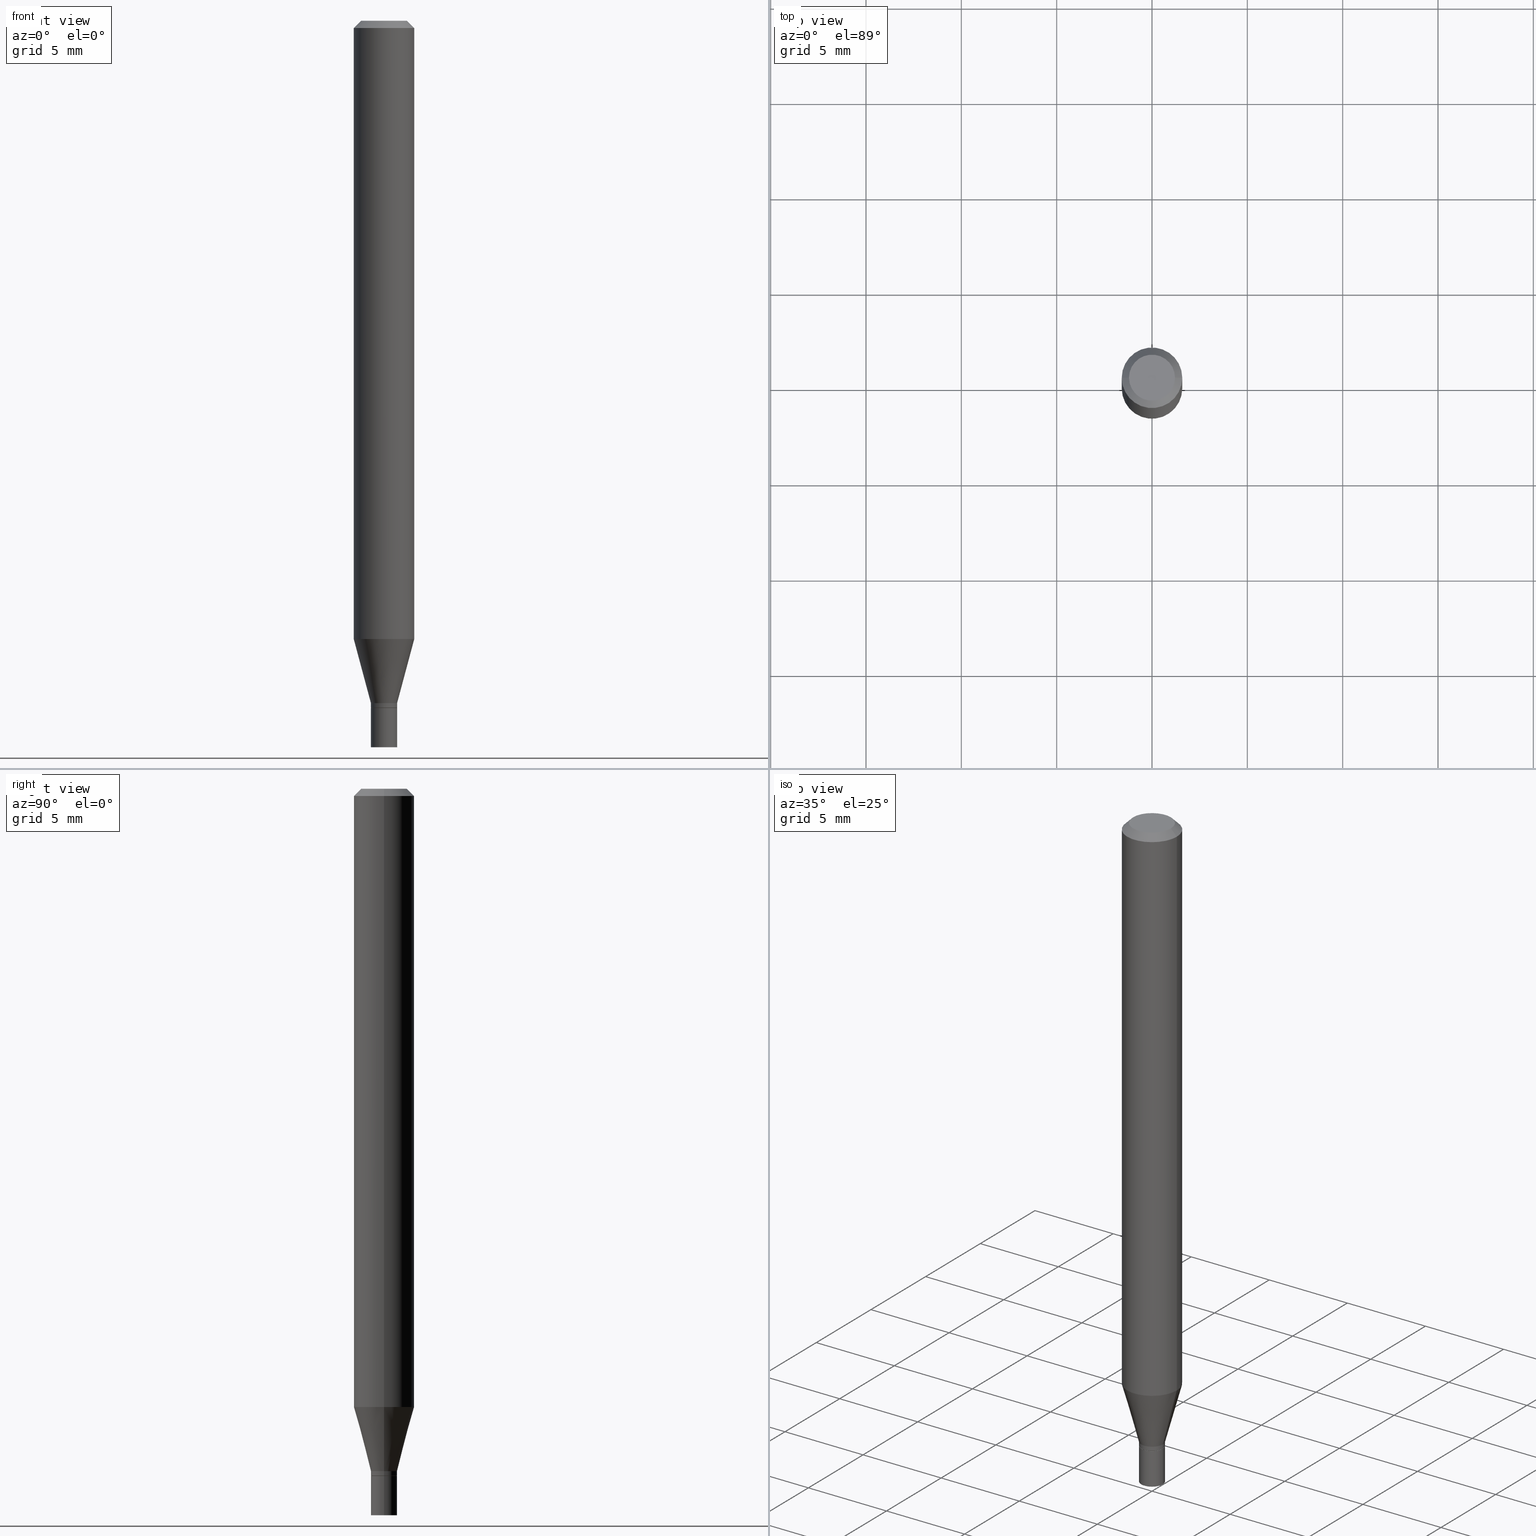
[diagram: canonical four-view strip — front | top / right | iso, engineering-drawing reading convention]
A machine part, canonical four-view strip (front | top / right | iso — engineering-drawing reading convention). The complete STEP part file that produces these views, byte-faithful:
ISO-10303-21;
HEADER;
FILE_DESCRIPTION (( 'STEP AP203' ),
    '1' );
FILE_NAME ('02415.STEP',
    '2024-03-18T20:28:43',
    ( '' ),
    ( '' ),
    'SwSTEP 2.0',
    'SolidWorks 2023',
    '' );
FILE_SCHEMA (( 'CONFIG_CONTROL_DESIGN' ));
ENDSEC;

DATA;
#1 = CARTESIAN_POINT ( 'NONE',  ( 3.470120235976709172E-29, -4.954412019818423555E-15, -1.419000000000000039 ) ) ;
#2 = AXIS2_PLACEMENT_3D ( 'NONE', #307, #132, #411 ) ;
#3 = CARTESIAN_POINT ( 'NONE',  ( 3.470120235976709172E-29, -4.954412019818423555E-15, -1.419000000000000039 ) ) ;
#4 = ORIENTED_EDGE ( 'NONE', *, *, #56, .F. ) ;
#5 = EDGE_CURVE ( 'NONE', #403, #463, #323, .T. ) ;
#6 = ORIENTED_EDGE ( 'NONE', *, *, #111, .T. ) ;
#7 = ORIENTED_EDGE ( 'NONE', *, *, #88, .T. ) ;
#8 = CARTESIAN_POINT ( 'NONE',  ( 0.02699999999999991990, -1.885399922975286224E-16, 1.316567729464898656E-30 ) ) ;
#9 = ADVANCED_FACE ( 'NONE', ( #79 ), #220, .F. ) ;
#10 = CARTESIAN_POINT ( 'NONE',  ( 3.468897501573616931E-29, -4.952666279149002051E-15, -1.418500000000000094 ) ) ;
#11 = EDGE_LOOP ( 'NONE', ( #233, #201 ) ) ;
#12 = ORIENTED_EDGE ( 'NONE', *, *, #127, .T. ) ;
#13 = DIRECTION ( 'NONE',  ( 0.7071067811865656694, -2.468850131082446387E-15, 0.7071067811865294761 ) ) ;
#14 = APPROVAL ( #182, 'UNSPECIFIED' ) ;
#15 =( GEOMETRIC_REPRESENTATION_CONTEXT ( 3 ) GLOBAL_UNCERTAINTY_ASSIGNED_CONTEXT ( ( #151 ) ) GLOBAL_UNIT_ASSIGNED_CONTEXT ( ( #449, #424, #317 ) ) REPRESENTATION_CONTEXT ( 'NONE', 'WORKASPACE' ) );
#16 = DIRECTION ( 'NONE',  ( -2.445468806185136877E-29, 3.491481338843145188E-15, 1.000000000000000000 ) ) ;
#17 = ORIENTED_EDGE ( 'NONE', *, *, #380, .F. ) ;
#18 = CARTESIAN_POINT ( 'NONE',  ( 0.06250000000000000000, -4.364351673553916694E-16, 3.047610484872459871E-30 ) ) ;
#19 = ORIENTED_EDGE ( 'NONE', *, *, #71, .T. ) ;
#20 = CARTESIAN_POINT ( 'NONE',  ( 3.668203209277704895E-29, -5.237222008264718177E-15, -1.500000000000000222 ) ) ;
#21 = VECTOR ( 'NONE', #410, 39.37007874015748143 ) ;
#22 = DATE_TIME_ROLE ( 'creation_date' ) ;
#23 = DIRECTION ( 'NONE',  ( -2.445468806185136597E-29, 3.491481338843145583E-15, 1.000000000000000000 ) ) ;
#24 = DATE_AND_TIME ( #205, #247 ) ;
#25 = ORIENTED_EDGE ( 'NONE', *, *, #276, .F. ) ;
#26 = EDGE_CURVE ( 'NONE', #206, #260, #367, .T. ) ;
#27 = CONICAL_SURFACE ( 'NONE', #279, 0.02699999999999991296, 0.2617993877991495744 ) ;
#28 = PERSON_AND_ORGANIZATION ( #50, #83 ) ;
#29 = AXIS2_PLACEMENT_3D ( 'NONE', #275, #241, #105 ) ;
#30 = PERSON_AND_ORGANIZATION ( #50, #83 ) ;
#31 = CARTESIAN_POINT ( 'NONE',  ( 3.470120235976709172E-29, -4.954412019818423555E-15, -1.419000000000000039 ) ) ;
#32 = APPLICATION_CONTEXT ( 'configuration controlled 3d designs of mechanical parts and assemblies' ) ;
#33 = CIRCLE ( 'NONE', #358, 0.06250000000000000000 ) ;
#34 = DIRECTION ( 'NONE',  ( -2.445468806185136877E-29, 3.491481338843145188E-15, 1.000000000000000000 ) ) ;
#35 = VERTEX_POINT ( 'NONE', #117 ) ;
#36 = CARTESIAN_POINT ( 'NONE',  ( 0.000000000000000000, 0.000000000000000000, 0.000000000000000000 ) ) ;
#37 = DIRECTION ( 'NONE',  ( 1.000000000000000000, -6.982962677686267499E-15, 4.852736867747366768E-29 ) ) ;
#38 = ADVANCED_FACE ( 'NONE', ( #373 ), #68, .T. ) ;
#39 = ORIENTED_EDGE ( 'NONE', *, *, #308, .F. ) ;
#40 = CYLINDRICAL_SURFACE ( 'NONE', #378, 0.02699999999999991990 ) ;
#41 = CONICAL_SURFACE ( 'NONE', #290, 0.02649999999999999925, 0.7853981633974739252 ) ;
#42 = AXIS2_PLACEMENT_3D ( 'NONE', #285, #392, #104 ) ;
#43 = ORIENTED_EDGE ( 'NONE', *, *, #5, .F. ) ;
#44 = LINE ( 'NONE', #377, #398 ) ;
#45 = DIRECTION ( 'NONE',  ( 2.445468806185136597E-29, -3.491481338843145583E-15, -1.000000000000000000 ) ) ;
#46 = PLANE ( 'NONE',  #148 ) ;
#47 = DIRECTION ( 'NONE',  ( -2.445468806185136597E-29, 3.491481338843145583E-15, 1.000000000000000000 ) ) ;
#48 = DIRECTION ( 'NONE',  ( 1.000000000000000000, -6.982962677686266711E-15, 0.000000000000000000 ) ) ;
#49 = CARTESIAN_POINT ( 'NONE',  ( -0.02649999999999999925, -4.763468967667886820E-15, -1.419000000000000039 ) ) ;
#50 = PERSON ( 'UNSPECIFIED', 'UNSPECIFIED', 'UNSPECIFIED', ('UNSPECIFIED'), ('UNSPECIFIED'), ('UNSPECIFIED') ) ;
#51 = VECTOR ( 'NONE', #441, 39.37007874015748143 ) ;
#52 = VERTEX_POINT ( 'NONE', #402 ) ;
#53 = CARTESIAN_POINT ( 'NONE',  ( -0.06250000000000000000, 4.440892098500626162E-16, -3.074334431409316114E-30 ) ) ;
#54 = ORIENTED_EDGE ( 'NONE', *, *, #97, .T. ) ;
#55 = DIRECTION ( 'NONE',  ( -2.445468806185136877E-29, 3.491481338843145188E-15, 1.000000000000000000 ) ) ;
#56 = EDGE_CURVE ( 'NONE', #62, #100, #246, .T. ) ;
#57 = ORIENTED_EDGE ( 'NONE', *, *, #274, .T. ) ;
#58 = EDGE_CURVE ( 'NONE', #265, #52, #195, .T. ) ;
#59 = EDGE_LOOP ( 'NONE', ( #261, #417, #141, #166 ) ) ;
#60 = AXIS2_PLACEMENT_3D ( 'NONE', #320, #332, #254 ) ;
#61 = PERSON_AND_ORGANIZATION_ROLE ( 'design_supplier' ) ;
#62 = VERTEX_POINT ( 'NONE', #443 ) ;
#63 = APPLICATION_PROTOCOL_DEFINITION ( 'international standard', 'config_control_design', 1994, #152 ) ;
#64 = VERTEX_POINT ( 'NONE', #115 ) ;
#65 = ADVANCED_FACE ( 'NONE', ( #181 ), #387, .T. ) ;
#66 = PERSON_AND_ORGANIZATION ( #50, #83 ) ;
#67 = VERTEX_POINT ( 'NONE', #267 ) ;
#68 = CONICAL_SURFACE ( 'NONE', #302, 0.06250000000000000000, 0.7853981633974405074 ) ;
#69 = MECHANICAL_CONTEXT ( 'NONE', #32, 'mechanical' ) ;
#70 = PRODUCT_DEFINITION_FORMATION_WITH_SPECIFIED_SOURCE ( 'ANY', '', #312, .NOT_KNOWN. ) ;
#71 = EDGE_CURVE ( 'NONE', #300, #265, #351, .T. ) ;
#72 = CIRCLE ( 'NONE', #397, 0.04749999999999999362 ) ;
#73 = VECTOR ( 'NONE', #464, 39.37007874015748143 ) ;
#74 = AXIS2_PLACEMENT_3D ( 'NONE', #133, #140, #170 ) ;
#75 = CALENDAR_DATE ( 2024, 18, 3 ) ;
#76 = EDGE_CURVE ( 'NONE', #260, #272, #161, .T. ) ;
#77 = DIRECTION ( 'NONE',  ( 1.000000000000000000, -6.982962677686266711E-15, 0.000000000000000000 ) ) ;
#78 = DIRECTION ( 'NONE',  ( -2.445468806185136597E-29, 3.491481338843145583E-15, 1.000000000000000000 ) ) ;
#79 = FACE_OUTER_BOUND ( 'NONE', #333, .T. ) ;
#80 = ADVANCED_BREP_SHAPE_REPRESENTATION ( '02415', ( #199, #349, #74 ), #15 ) ;
#81 = ORIENTED_EDGE ( 'NONE', *, *, #425, .F. ) ;
#82 = DIRECTION ( 'NONE',  ( -2.445468806185136597E-29, 3.491481338843145583E-15, 1.000000000000000000 ) ) ;
#83 = ORGANIZATION ( 'UNSPECIFIED', 'UNSPECIFIED', '' ) ;
#84 = ORIENTED_EDGE ( 'NONE', *, *, #71, .F. ) ;
#85 = ORIENTED_EDGE ( 'NONE', *, *, #440, .F. ) ;
#86 = DIRECTION ( 'NONE',  ( 1.000000000000000000, -6.982962677686277755E-15, 0.000000000000000000 ) ) ;
#87 = DESIGN_CONTEXT ( 'detailed design', #152, 'design' ) ;
#88 = EDGE_CURVE ( 'NONE', #67, #463, #316, .T. ) ;
#89 = ORIENTED_EDGE ( 'NONE', *, *, #204, .T. ) ;
#90 = ORIENTED_EDGE ( 'NONE', *, *, #113, .T. ) ;
#91 = CARTESIAN_POINT ( 'NONE',  ( -0.02699999999999999969, -4.903970475386344434E-15, -1.500000000000000222 ) ) ;
#92 = CARTESIAN_POINT ( 'NONE',  ( -0.04749999999999999362, 3.578768372314215436E-16, 2.354505479474137135E-16 ) ) ;
#93 = CIRCLE ( 'NONE', #186, 0.02699999999999999969 ) ;
#94 = CC_DESIGN_APPROVAL ( #164, ( #175 ) ) ;
#95 = ORIENTED_EDGE ( 'NONE', *, *, #425, .T. ) ;
#96 = CARTESIAN_POINT ( 'NONE',  ( 0.000000000000000000, 0.000000000000000000, 0.000000000000000000 ) ) ;
#97 = EDGE_CURVE ( 'NONE', #100, #62, #114, .T. ) ;
#98 = ORIENTED_EDGE ( 'NONE', *, *, #147, .F. ) ;
#99 = DIRECTION ( 'NONE',  ( 1.000000000000000000, -6.982962677686267499E-15, 4.852736867747366768E-29 ) ) ;
#100 = VERTEX_POINT ( 'NONE', #221 ) ;
#101 = DATE_AND_TIME ( #174, #154 ) ;
#102 = LINE ( 'NONE', #171, #414 ) ;
#103 = DIRECTION ( 'NONE',  ( 1.000000000000000000, -6.982962677686283277E-15, 0.000000000000000000 ) ) ;
#104 = DIRECTION ( 'NONE',  ( 1.000000000000000000, -6.982962677686261189E-15, 0.000000000000000000 ) ) ;
#105 = DIRECTION ( 'NONE',  ( -1.000000000000000000, 6.982962677686265922E-15, -4.876176775795935793E-29 ) ) ;
#106 = CLOSED_SHELL ( 'NONE', ( #315, #303, #336, #346 ) ) ;
#107 = LOCAL_TIME ( 16, 28, 43.00000000000000000, #314 ) ;
#108 = CARTESIAN_POINT ( 'NONE',  ( 0.000000000000000000, 0.000000000000000000, 0.000000000000000000 ) ) ;
#109 = CARTESIAN_POINT ( 'NONE',  ( 0.000000000000000000, 0.000000000000000000, 0.000000000000000000 ) ) ;
#110 = ADVANCED_FACE ( 'NONE', ( #365 ), #40, .T. ) ;
#111 = EDGE_CURVE ( 'NONE', #64, #403, #431, .T. ) ;
#112 = FACE_OUTER_BOUND ( 'NONE', #238, .T. ) ;
#113 = EDGE_CURVE ( 'NONE', #384, #100, #212, .T. ) ;
#114 = CIRCLE ( 'NONE', #178, 0.06250000000000000000 ) ;
#115 = CARTESIAN_POINT ( 'NONE',  ( 0.02649999999999999925, -5.139460530777110033E-15, -1.419000000000000039 ) ) ;
#116 = CARTESIAN_POINT ( 'NONE',  ( 0.000000000000000000, 0.000000000000000000, 0.000000000000000000 ) ) ;
#117 = CARTESIAN_POINT ( 'NONE',  ( 0.02699999999999991296, -5.108037198727522179E-15, -1.409000000000000252 ) ) ;
#118 = ORIENTED_EDGE ( 'NONE', *, *, #308, .T. ) ;
#119 = CARTESIAN_POINT ( 'NONE',  ( 3.576687321579069994E-29, -5.368277968210015545E-15, -1.500000000000000222 ) ) ;
#120 = CIRCLE ( 'NONE', #426, 0.02649999999999999925 ) ;
#121 = ORIENTED_EDGE ( 'NONE', *, *, #58, .T. ) ;
#122 = ORIENTED_EDGE ( 'NONE', *, *, #113, .F. ) ;
#123 = LINE ( 'NONE', #18, #21 ) ;
#124 = ORIENTED_EDGE ( 'NONE', *, *, #428, .F. ) ;
#125 = FACE_OUTER_BOUND ( 'NONE', #438, .T. ) ;
#126 = DIRECTION ( 'NONE',  ( -2.445468806185136597E-29, 3.491481338843145583E-15, 1.000000000000000000 ) ) ;
#127 = EDGE_CURVE ( 'NONE', #463, #67, #262, .T. ) ;
#128 = AXIS2_PLACEMENT_3D ( 'NONE', #10, #299, #407 ) ;
#129 = ORIENTED_EDGE ( 'NONE', *, *, #283, .F. ) ;
#130 = VECTOR ( 'NONE', #13, 39.37007874015748143 ) ;
#131 = ORIENTED_EDGE ( 'NONE', *, *, #204, .F. ) ;
#132 = DIRECTION ( 'NONE',  ( 2.445468806185136597E-29, -3.491481338843145583E-15, -1.000000000000000000 ) ) ;
#133 = CARTESIAN_POINT ( 'NONE',  ( 0.000000000000000000, 0.000000000000000000, 0.000000000000000000 ) ) ;
#134 = ADVANCED_FACE ( 'NONE', ( #149 ), #27, .T. ) ;
#135 = ORIENTED_EDGE ( 'NONE', *, *, #412, .T. ) ;
#136 = VECTOR ( 'NONE', #433, 39.37007874015748143 ) ;
#137 = AXIS2_PLACEMENT_3D ( 'NONE', #452, #23, #103 ) ;
#138 = CARTESIAN_POINT ( 'NONE',  ( -0.02699999999999991296, -4.370239985110565754E-15, -1.409000000000000252 ) ) ;
#139 = SECURITY_CLASSIFICATION ( '', '', #180 ) ;
#140 = DIRECTION ( 'NONE',  ( 0.000000000000000000, 0.000000000000000000, 1.000000000000000000 ) ) ;
#141 = ORIENTED_EDGE ( 'NONE', *, *, #97, .F. ) ;
#142 = APPROVAL_DATE_TIME ( #24, #209 ) ;
#143 = PERSON_AND_ORGANIZATION ( #50, #83 ) ;
#144 = ADVANCED_FACE ( 'NONE', ( #250 ), #41, .T. ) ;
#145 = AXIS2_PLACEMENT_3D ( 'NONE', #1, #177, #357 ) ;
#146 = PERSON_AND_ORGANIZATION ( #50, #83 ) ;
#147 = EDGE_CURVE ( 'NONE', #272, #260, #33, .T. ) ;
#148 = AXIS2_PLACEMENT_3D ( 'NONE', #382, #335, #448 ) ;
#149 = FACE_OUTER_BOUND ( 'NONE', #301, .T. ) ;
#150 = DIRECTION ( 'NONE',  ( -2.445468806185136597E-29, 3.491481338843145583E-15, 1.000000000000000000 ) ) ;
#151 = UNCERTAINTY_MEASURE_WITH_UNIT (LENGTH_MEASURE( 1.000000000000000082E-05 ), #449, 'distance_accuracy_value', 'NONE');
#152 = APPLICATION_CONTEXT ( 'configuration controlled 3d designs of mechanical parts and assemblies' ) ;
#153 = CALENDAR_DATE ( 2024, 18, 3 ) ;
#154 = LOCAL_TIME ( 16, 28, 43.00000000000000000, #419 ) ;
#155 = EDGE_LOOP ( 'NONE', ( #7, #376, #436, #124 ) ) ;
#156 = DIRECTION ( 'NONE',  ( -2.445468806185136597E-29, 3.491481338843145583E-15, 1.000000000000000000 ) ) ;
#157 = ORIENTED_EDGE ( 'NONE', *, *, #256, .T. ) ;
#158 = DIRECTION ( 'NONE',  ( -2.445468806185136877E-29, 3.491481338843145188E-15, 1.000000000000000000 ) ) ;
#159 = ORIENTED_EDGE ( 'NONE', *, *, #393, .T. ) ;
#160 = CARTESIAN_POINT ( 'NONE',  ( 0.000000000000000000, 0.000000000000000000, 0.000000000000000000 ) ) ;
#161 = CIRCLE ( 'NONE', #326, 0.06250000000000000000 ) ;
#162 = AXIS2_PLACEMENT_3D ( 'NONE', #160, #269, #343 ) ;
#163 = DIRECTION ( 'NONE',  ( 1.000000000000000000, -6.982962677686265922E-15, 4.876176775795935793E-29 ) ) ;
#164 = APPROVAL ( #353, 'UNSPECIFIED' ) ;
#165 = LINE ( 'NONE', #415, #187 ) ;
#166 = ORIENTED_EDGE ( 'NONE', *, *, #393, .F. ) ;
#167 = FACE_OUTER_BOUND ( 'NONE', #280, .T. ) ;
#168 = PERSON_AND_ORGANIZATION ( #50, #83 ) ;
#169 = ADVANCED_FACE ( 'NONE', ( #112 ), #427, .T. ) ;
#170 = DIRECTION ( 'NONE',  ( 1.000000000000000000, 0.000000000000000000, 0.000000000000000000 ) ) ;
#171 = CARTESIAN_POINT ( 'NONE',  ( -0.06250000000000000000, 3.840629472727444916E-16, -0.01499999999999999944 ) ) ;
#172 = CLOSED_SHELL ( 'NONE', ( #110, #321, #356, #244, #65, #134, #169, #38, #437, #9, #144, #189 ) ) ;
#173 = VECTOR ( 'NONE', #55, 39.37007874015748143 ) ;
#174 = CALENDAR_DATE ( 2024, 18, 3 ) ;
#175 = PRODUCT_DEFINITION ( 'UNKNOWN', '', #70, #87 ) ;
#176 = CALENDAR_DATE ( 2024, 18, 3 ) ;
#177 = DIRECTION ( 'NONE',  ( -2.445468806185136597E-29, 3.491481338843145583E-15, 1.000000000000000000 ) ) ;
#178 = AXIS2_PLACEMENT_3D ( 'NONE', #370, #47, #77 ) ;
#179 = CARTESIAN_POINT ( 'NONE',  ( 3.445665547914857626E-29, -4.919497206429992694E-15, -1.409000000000000252 ) ) ;
#180 = SECURITY_CLASSIFICATION_LEVEL ( 'unclassified' ) ;
#181 = FACE_OUTER_BOUND ( 'NONE', #390, .T. ) ;
#182 = APPROVAL_STATUS ( 'not_yet_approved' ) ;
#183 = DIRECTION ( 'NONE',  ( -2.445468806185136597E-29, 3.491481338843145583E-15, 1.000000000000000000 ) ) ;
#184 = DIRECTION ( 'NONE',  ( 1.000000000000000000, -6.982962677686266711E-15, 4.876176775795935793E-29 ) ) ;
#185 = CARTESIAN_POINT ( 'NONE',  ( 3.470120235976709172E-29, -4.954412019818423555E-15, -1.419000000000000039 ) ) ;
#186 = AXIS2_PLACEMENT_3D ( 'NONE', #3, #156, #313 ) ;
#187 = VECTOR ( 'NONE', #16, 39.37007874015748143 ) ;
#188 = ORIENTED_EDGE ( 'NONE', *, *, #428, .T. ) ;
#189 = ADVANCED_FACE ( 'NONE', ( #222 ), #401, .T. ) ;
#190 = DIRECTION ( 'NONE',  ( 1.000000000000000000, -6.982962677686283277E-15, 0.000000000000000000 ) ) ;
#191 = CARTESIAN_POINT ( 'NONE',  ( 3.445665547914857626E-29, -4.919497206429992694E-15, -1.409000000000000252 ) ) ;
#192 = EDGE_CURVE ( 'NONE', #368, #384, #72, .T. ) ;
#193 = DIRECTION ( 'NONE',  ( -1.000000000000000000, 6.982962677686266711E-15, 0.000000000000000000 ) ) ;
#194 = CYLINDRICAL_SURFACE ( 'NONE', #162, 0.02699999999999999969 ) ;
#195 = LINE ( 'NONE', #362, #231 ) ;
#196 = CARTESIAN_POINT ( 'NONE',  ( 3.470120235976709172E-29, -4.954412019818423555E-15, -1.419000000000000039 ) ) ;
#197 = CIRCLE ( 'NONE', #281, 0.02699999999999999969 ) ;
#198 = CARTESIAN_POINT ( 'NONE',  ( 0.02699999999999991296, -5.108037198727522179E-15, -1.409000000000000252 ) ) ;
#199 = MANIFOLD_SOLID_BREP ( 'Body-Move/Copy2[1]', #106 ) ;
#200 = DIRECTION ( 'NONE',  ( -2.445468806185136877E-29, 3.491481338843145188E-15, 1.000000000000000000 ) ) ;
#201 = ORIENTED_EDGE ( 'NONE', *, *, #440, .T. ) ;
#202 = LOCAL_TIME ( 16, 28, 43.00000000000000000, #248 ) ;
#203 = ORIENTED_EDGE ( 'NONE', *, *, #88, .F. ) ;
#204 = EDGE_CURVE ( 'NONE', #268, #52, #93, .T. ) ;
#205 = CALENDAR_DATE ( 2024, 18, 3 ) ;
#206 = VERTEX_POINT ( 'NONE', #138 ) ;
#207 = CARTESIAN_POINT ( 'NONE',  ( -0.02699999999999992337, -4.760819740493776408E-15, -1.418500000000000094 ) ) ;
#208 = EDGE_LOOP ( 'NONE', ( #226, #89 ) ) ;
#209 = APPROVAL ( #239, 'UNSPECIFIED' ) ;
#210 = DATE_AND_TIME ( #176, #107 ) ;
#211 = COORDINATED_UNIVERSAL_TIME_OFFSET ( 5, 0, .BEHIND. ) ;
#212 = LINE ( 'NONE', #355, #73 ) ;
#213 = PRODUCT_RELATED_PRODUCT_CATEGORY ( 'detail', '', ( #312 ) ) ;
#214 = DIRECTION ( 'NONE',  ( 1.000000000000000000, -6.982962677686280910E-15, 0.000000000000000000 ) ) ;
#215 = CARTESIAN_POINT ( 'NONE',  ( -0.06250000000000000000, -4.012829302446366033E-15, -1.276512196331304860 ) ) ;
#216 = EDGE_CURVE ( 'NONE', #35, #206, #309, .T. ) ;
#217 = AXIS2_PLACEMENT_3D ( 'NONE', #109, #395, #184 ) ;
#218 = AXIS2_PLACEMENT_3D ( 'NONE', #230, #379, #190 ) ;
#219 = DIRECTION ( 'NONE',  ( 1.000000000000000000, -6.982962677686262766E-15, 0.000000000000000000 ) ) ;
#220 = PLANE ( 'NONE',  #252 ) ;
#221 = CARTESIAN_POINT ( 'NONE',  ( 0.06250000000000000000, -4.888073874380388472E-16, -0.01499999999999999944 ) ) ;
#222 = FACE_OUTER_BOUND ( 'NONE', #413, .T. ) ;
#223 = DIRECTION ( 'NONE',  ( -2.438088387897960049E-29, 3.491481338843145188E-15, 1.000000000000000000 ) ) ;
#224 = CC_DESIGN_PERSON_AND_ORGANIZATION_ASSIGNMENT ( #143, #237, ( #312 ) ) ;
#225 = LINE ( 'NONE', #198, #447 ) ;
#226 = ORIENTED_EDGE ( 'NONE', *, *, #450, .T. ) ;
#227 = PLANE ( 'NONE',  #432 ) ;
#228 = DIRECTION ( 'NONE',  ( -2.445468806185136597E-29, 3.491481338843145583E-15, 1.000000000000000000 ) ) ;
#229 = LINE ( 'NONE', #53, #173 ) ;
#230 = CARTESIAN_POINT ( 'NONE',  ( 3.445665547914857626E-29, -4.919497206429992694E-15, -1.409000000000000252 ) ) ;
#231 = VECTOR ( 'NONE', #34, 39.37007874015748143 ) ;
#232 = AXIS2_PLACEMENT_3D ( 'NONE', #96, #374, #445 ) ;
#233 = ORIENTED_EDGE ( 'NONE', *, *, #192, .T. ) ;
#234 = FACE_OUTER_BOUND ( 'NONE', #208, .T. ) ;
#235 = ORIENTED_EDGE ( 'NONE', *, *, #111, .F. ) ;
#236 = EDGE_LOOP ( 'NONE', ( #409, #19, #121, #131 ) ) ;
#237 = PERSON_AND_ORGANIZATION_ROLE ( 'design_owner' ) ;
#238 = EDGE_LOOP ( 'NONE', ( #329, #388, #159, #4 ) ) ;
#239 = APPROVAL_STATUS ( 'not_yet_approved' ) ;
#240 = PRODUCT_DEFINITION_SHAPE ( 'NONE', 'NONE',  #175 ) ;
#241 = DIRECTION ( 'NONE',  ( 2.438088387897960049E-29, -3.491481338843145188E-15, -1.000000000000000000 ) ) ;
#242 = ORIENTED_EDGE ( 'NONE', *, *, #216, .T. ) ;
#243 = FACE_OUTER_BOUND ( 'NONE', #59, .T. ) ;
#244 = ADVANCED_FACE ( 'NONE', ( #243 ), #391, .T. ) ;
#245 = APPLICATION_PROTOCOL_DEFINITION ( 'international standard', 'config_control_design', 1994, #32 ) ;
#246 = CIRCLE ( 'NONE', #446, 0.06250000000000000000 ) ;
#247 = LOCAL_TIME ( 16, 28, 43.00000000000000000, #347 ) ;
#248 = COORDINATED_UNIVERSAL_TIME_OFFSET ( 5, 0, .BEHIND. ) ;
#249 = DIRECTION ( 'NONE',  ( -2.445468806185136597E-29, 3.491481338843145583E-15, 1.000000000000000000 ) ) ;
#250 = FACE_OUTER_BOUND ( 'NONE', #334, .T. ) ;
#251 = DIRECTION ( 'NONE',  ( 1.000000000000000000, -6.982962677686277755E-15, 0.000000000000000000 ) ) ;
#252 = AXIS2_PLACEMENT_3D ( 'NONE', #185, #223, #328 ) ;
#253 = VECTOR ( 'NONE', #158, 39.37007874015748143 ) ;
#254 = DIRECTION ( 'NONE',  ( 1.000000000000000000, -6.982962677686261189E-15, 0.000000000000000000 ) ) ;
#255 = CARTESIAN_POINT ( 'NONE',  ( -0.02649999999999999925, -4.766118194841997232E-15, -1.419000000000000039 ) ) ;
#256 = EDGE_CURVE ( 'NONE', #368, #62, #102, .T. ) ;
#257 = DIRECTION ( 'NONE',  ( 1.000000000000000000, -6.982962677686262766E-15, 0.000000000000000000 ) ) ;
#258 = DIRECTION ( 'NONE',  ( 1.000000000000000000, -6.982962677686265922E-15, 4.876176775795935232E-29 ) ) ;
#259 = CARTESIAN_POINT ( 'NONE',  ( 3.668203209277705088E-31, -5.237222008264718399E-17, -0.01499999999999999944 ) ) ;
#260 = VERTEX_POINT ( 'NONE', #215 ) ;
#261 = ORIENTED_EDGE ( 'NONE', *, *, #147, .T. ) ;
#262 = CIRCLE ( 'NONE', #420, 0.02699999999999992337 ) ;
#263 = DIRECTION ( 'NONE',  ( -2.438088387897960049E-29, 3.491481338843145188E-15, 1.000000000000000000 ) ) ;
#264 = CC_DESIGN_SECURITY_CLASSIFICATION ( #139, ( #70 ) ) ;
#265 = VERTEX_POINT ( 'NONE', #429 ) ;
#266 = FACE_OUTER_BOUND ( 'NONE', #284, .T. ) ;
#267 = CARTESIAN_POINT ( 'NONE',  ( 0.02699999999999992337, -5.141206271446531536E-15, -1.418500000000000094 ) ) ;
#268 = VERTEX_POINT ( 'NONE', #465 ) ;
#269 = DIRECTION ( 'NONE',  ( -2.445468806185136597E-29, 3.491481338843145583E-15, 1.000000000000000000 ) ) ;
#270 = CYLINDRICAL_SURFACE ( 'NONE', #232, 0.02699999999999999969 ) ;
#271 = ORIENTED_EDGE ( 'NONE', *, *, #450, .F. ) ;
#272 = VERTEX_POINT ( 'NONE', #363 ) ;
#273 = DIRECTION ( 'NONE',  ( -2.445468806185136597E-29, 3.491481338843145583E-15, 1.000000000000000000 ) ) ;
#274 = EDGE_CURVE ( 'NONE', #300, #268, #165, .T. ) ;
#275 = CARTESIAN_POINT ( 'NONE',  ( 3.316907271900976096E-16, 0.04749999999999999362, -4.812008962134135024E-17 ) ) ;
#276 = EDGE_CURVE ( 'NONE', #265, #300, #197, .T. ) ;
#277 = APPROVAL_ROLE ( '' ) ;
#278 = AXIS2_PLACEMENT_3D ( 'NONE', #116, #325, #258 ) ;
#279 = AXIS2_PLACEMENT_3D ( 'NONE', #179, #396, #319 ) ;
#280 = EDGE_LOOP ( 'NONE', ( #6, #405, #203, #39 ) ) ;
#281 = AXIS2_PLACEMENT_3D ( 'NONE', #20, #273, #306 ) ;
#282 = LENGTH_MEASURE_WITH_UNIT ( LENGTH_MEASURE( 0.02539999999999999897 ), #423 );
#283 = EDGE_CURVE ( 'NONE', #463, #206, #44, .T. ) ;
#284 = EDGE_LOOP ( 'NONE', ( #25, #84 ) ) ;
#285 = CARTESIAN_POINT ( 'NONE',  ( 3.470120235976709172E-29, -4.954412019818423555E-15, -1.419000000000000039 ) ) ;
#286 = CIRCLE ( 'NONE', #42, 0.02699999999999999969 ) ;
#287 = DIRECTION ( 'NONE',  ( -2.445468806185136597E-29, 3.491481338843145583E-15, 1.000000000000000000 ) ) ;
#288 = DIRECTION ( 'NONE',  ( -2.445468806185136597E-29, 3.491481338843145583E-15, 1.000000000000000000 ) ) ;
#289 = DIMENSIONAL_EXPONENTS ( 1.000000000000000000, 0.000000000000000000, 0.000000000000000000, 0.000000000000000000, 0.000000000000000000, 0.000000000000000000, 0.000000000000000000 ) ;
#290 = AXIS2_PLACEMENT_3D ( 'NONE', #31, #150, #251 ) ;
#291 = APPROVAL_PERSON_ORGANIZATION ( #66, #164, #277 ) ;
#292 = DATE_AND_TIME ( #153, #345 ) ;
#293 = ORIENTED_EDGE ( 'NONE', *, *, #76, .F. ) ;
#294 = CC_DESIGN_DATE_AND_TIME_ASSIGNMENT ( #101, #22, ( #175 ) ) ;
#295 = ORIENTED_EDGE ( 'NONE', *, *, #127, .F. ) ;
#296 = ORIENTED_EDGE ( 'NONE', *, *, #58, .F. ) ;
#297 = ORIENTED_EDGE ( 'NONE', *, *, #256, .F. ) ;
#298 = FACE_OUTER_BOUND ( 'NONE', #11, .T. ) ;
#299 = DIRECTION ( 'NONE',  ( -2.445468806185136597E-29, 3.491481338843145583E-15, 1.000000000000000000 ) ) ;
#300 = VERTEX_POINT ( 'NONE', #91 ) ;
#301 = EDGE_LOOP ( 'NONE', ( #381, #95, #418, #293 ) ) ;
#302 = AXIS2_PLACEMENT_3D ( 'NONE', #259, #45, #193 ) ;
#303 = ADVANCED_FACE ( 'NONE', ( #266 ), #227, .F. ) ;
#304 = CARTESIAN_POINT ( 'NONE',  ( 0.02649999999999999925, -5.139460530777110033E-15, -1.419000000000000039 ) ) ;
#305 = FACE_OUTER_BOUND ( 'NONE', #236, .T. ) ;
#306 = DIRECTION ( 'NONE',  ( 1.000000000000000000, -6.982962677686261189E-15, 0.000000000000000000 ) ) ;
#307 = CARTESIAN_POINT ( 'NONE',  ( 3.668203209277705088E-31, -5.237222008264718399E-17, -0.01499999999999999944 ) ) ;
#308 = EDGE_CURVE ( 'NONE', #64, #67, #442, .T. ) ;
#309 = CIRCLE ( 'NONE', #137, 0.02699999999999991296 ) ;
#310 = CIRCLE ( 'NONE', #371, 0.04749999999999999362 ) ;
#311 = DIRECTION ( 'NONE',  ( -2.445468806185136597E-29, 3.491481338843145583E-15, 1.000000000000000000 ) ) ;
#312 = PRODUCT ( '02415', '02415', '', ( #69 ) ) ;
#313 = DIRECTION ( 'NONE',  ( 1.000000000000000000, -6.982962677686261189E-15, 0.000000000000000000 ) ) ;
#314 = COORDINATED_UNIVERSAL_TIME_OFFSET ( 5, 0, .BEHIND. ) ;
#315 = ADVANCED_FACE ( 'NONE', ( #406 ), #270, .T. ) ;
#316 = CIRCLE ( 'NONE', #128, 0.02699999999999992337 ) ;
#317 =( NAMED_UNIT ( * ) SI_UNIT ( $, .STERADIAN. ) SOLID_ANGLE_UNIT ( ) );
#318 = CARTESIAN_POINT ( 'NONE',  ( 3.121670756843082346E-29, -4.456918512296428650E-15, -1.276512196331304860 ) ) ;
#319 = DIRECTION ( 'NONE',  ( 1.000000000000000000, -6.982962677686283277E-15, 0.000000000000000000 ) ) ;
#320 = CARTESIAN_POINT ( 'NONE',  ( 3.668203209277704895E-29, -5.237222008264718177E-15, -1.500000000000000222 ) ) ;
#321 = ADVANCED_FACE ( 'NONE', ( #167 ), #454, .T. ) ;
#322 = SHAPE_DEFINITION_REPRESENTATION ( #240, #80 ) ;
#323 = LINE ( 'NONE', #255, #136 ) ;
#324 = DIRECTION ( 'NONE',  ( 1.000000000000000000, -6.982962677686265922E-15, 4.876176775795935232E-29 ) ) ;
#325 = DIRECTION ( 'NONE',  ( -2.445468806185136597E-29, 3.491481338843145583E-15, 1.000000000000000000 ) ) ;
#326 = AXIS2_PLACEMENT_3D ( 'NONE', #375, #82, #257 ) ;
#327 = APPROVAL_PERSON_ORGANIZATION ( #28, #209, #457 ) ;
#328 = DIRECTION ( 'NONE',  ( 1.000000000000000000, -6.982962677686265922E-15, 4.876176775795935793E-29 ) ) ;
#329 = ORIENTED_EDGE ( 'NONE', *, *, #354, .F. ) ;
#330 = EDGE_LOOP ( 'NONE', ( #122, #455, #157, #340 ) ) ;
#331 = LINE ( 'NONE', #8, #253 ) ;
#332 = DIRECTION ( 'NONE',  ( -2.445468806185136597E-29, 3.491481338843145583E-15, 1.000000000000000000 ) ) ;
#333 = EDGE_LOOP ( 'NONE', ( #235, #344 ) ) ;
#334 = EDGE_LOOP ( 'NONE', ( #43, #135, #118, #295 ) ) ;
#335 = DIRECTION ( 'NONE',  ( 2.438088387897960049E-29, -3.491481338843145188E-15, -1.000000000000000000 ) ) ;
#336 = ADVANCED_FACE ( 'NONE', ( #305 ), #194, .T. ) ;
#337 = AXIS2_PLACEMENT_3D ( 'NONE', #108, #249, #394 ) ;
#338 = DIRECTION ( 'NONE',  ( -2.445468806185136597E-29, 3.491481338843145583E-15, 1.000000000000000000 ) ) ;
#339 = CC_DESIGN_APPROVAL ( #209, ( #70 ) ) ;
#340 = ORIENTED_EDGE ( 'NONE', *, *, #56, .T. ) ;
#341 = CARTESIAN_POINT ( 'NONE',  ( 0.04749999999999999362, -4.035134999187574186E-16, 2.354505479474186932E-16 ) ) ;
#342 = CC_DESIGN_PERSON_AND_ORGANIZATION_ASSIGNMENT ( #168, #389, ( #70 ) ) ;
#343 = DIRECTION ( 'NONE',  ( 1.000000000000000000, -6.982962677686266711E-15, 4.876176775795935232E-29 ) ) ;
#344 = ORIENTED_EDGE ( 'NONE', *, *, #412, .F. ) ;
#345 = LOCAL_TIME ( 16, 28, 43.00000000000000000, #211 ) ;
#346 = ADVANCED_FACE ( 'NONE', ( #234 ), #46, .F. ) ;
#347 = COORDINATED_UNIVERSAL_TIME_OFFSET ( 5, 0, .BEHIND. ) ;
#348 = EDGE_LOOP ( 'NONE', ( #369, #57, #271, #296 ) ) ;
#349 = MANIFOLD_SOLID_BREP ( 'Body-Move/Copy2[2]', #172 ) ;
#350 = APPROVAL_DATE_TIME ( #210, #164 ) ;
#351 = CIRCLE ( 'NONE', #60, 0.02699999999999999969 ) ;
#352 = CIRCLE ( 'NONE', #218, 0.02699999999999991296 ) ;
#353 = APPROVAL_STATUS ( 'not_yet_approved' ) ;
#354 = EDGE_CURVE ( 'NONE', #260, #62, #229, .T. ) ;
#355 = CARTESIAN_POINT ( 'NONE',  ( 0.06250000000000000000, -4.811533449433679005E-16, -0.01499999999999999944 ) ) ;
#356 = ADVANCED_FACE ( 'NONE', ( #125 ), #421, .T. ) ;
#357 = DIRECTION ( 'NONE',  ( 1.000000000000000000, -6.982962677686277755E-15, 0.000000000000000000 ) ) ;
#358 = AXIS2_PLACEMENT_3D ( 'NONE', #318, #288, #219 ) ;
#359 = AXIS2_PLACEMENT_3D ( 'NONE', #416, #126, #86 ) ;
#360 = APPROVAL_DATE_TIME ( #462, #14 ) ;
#361 = CC_DESIGN_PERSON_AND_ORGANIZATION_ASSIGNMENT ( #386, #61, ( #70 ) ) ;
#362 = CARTESIAN_POINT ( 'NONE',  ( 0.02699999999999999969, -1.885399922975291894E-16, 1.316567729464902510E-30 ) ) ;
#363 = CARTESIAN_POINT ( 'NONE',  ( 0.06250000000000000000, -4.893353679651821108E-15, -1.276512196331304860 ) ) ;
#364 = PERSON_AND_ORGANIZATION ( #50, #83 ) ;
#365 = FACE_OUTER_BOUND ( 'NONE', #155, .T. ) ;
#366 = CARTESIAN_POINT ( 'NONE',  ( -5.757869704046039586E-45, 8.220711943787967025E-31, 2.354505479474161294E-16 ) ) ;
#367 = LINE ( 'NONE', #435, #51 ) ;
#368 = VERTEX_POINT ( 'NONE', #92 ) ;
#369 = ORIENTED_EDGE ( 'NONE', *, *, #276, .T. ) ;
#370 = CARTESIAN_POINT ( 'NONE',  ( 3.668203209277705088E-31, -5.237222008264718399E-17, -0.01499999999999999944 ) ) ;
#371 = AXIS2_PLACEMENT_3D ( 'NONE', #453, #311, #99 ) ;
#372 = DIRECTION ( 'NONE',  ( 0.2588190451025209060, 1.565188264969625123E-15, 0.9659258262890682012 ) ) ;
#373 = FACE_OUTER_BOUND ( 'NONE', #330, .T. ) ;
#374 = DIRECTION ( 'NONE',  ( -2.445468806185136597E-29, 3.491481338843145583E-15, 1.000000000000000000 ) ) ;
#375 = CARTESIAN_POINT ( 'NONE',  ( 3.121670756843082346E-29, -4.456918512296428650E-15, -1.276512196331304860 ) ) ;
#376 = ORIENTED_EDGE ( 'NONE', *, *, #283, .T. ) ;
#377 = CARTESIAN_POINT ( 'NONE',  ( -0.02699999999999991990, 1.918465386552264810E-16, -1.328112474368820612E-30 ) ) ;
#378 = AXIS2_PLACEMENT_3D ( 'NONE', #36, #183, #324 ) ;
#379 = DIRECTION ( 'NONE',  ( -2.445468806185136597E-29, 3.491481338843145583E-15, 1.000000000000000000 ) ) ;
#380 = EDGE_CURVE ( 'NONE', #35, #272, #225, .T. ) ;
#381 = ORIENTED_EDGE ( 'NONE', *, *, #26, .F. ) ;
#382 = CARTESIAN_POINT ( 'NONE',  ( 1.885399922975638746E-16, 0.02699999999999504532, -1.419000000000000039 ) ) ;
#383 = ORIENTED_EDGE ( 'NONE', *, *, #26, .T. ) ;
#384 = VERTEX_POINT ( 'NONE', #341 ) ;
#385 = PERSON_AND_ORGANIZATION_ROLE ( 'creator' ) ;
#386 = PERSON_AND_ORGANIZATION ( #50, #83 ) ;
#387 = CONICAL_SURFACE ( 'NONE', #459, 0.02699999999999991296, 0.2617993877991495744 ) ;
#388 = ORIENTED_EDGE ( 'NONE', *, *, #76, .T. ) ;
#389 = PERSON_AND_ORGANIZATION_ROLE ( 'creator' ) ;
#390 = EDGE_LOOP ( 'NONE', ( #242, #383, #98, #17 ) ) ;
#391 = CYLINDRICAL_SURFACE ( 'NONE', #337, 0.06250000000000000000 ) ;
#392 = DIRECTION ( 'NONE',  ( -2.445468806185136597E-29, 3.491481338843145583E-15, 1.000000000000000000 ) ) ;
#393 = EDGE_CURVE ( 'NONE', #272, #100, #123, .T. ) ;
#394 = DIRECTION ( 'NONE',  ( 1.000000000000000000, -6.982962677686266711E-15, 4.876176775795935793E-29 ) ) ;
#395 = DIRECTION ( 'NONE',  ( -2.445468806185136597E-29, 3.491481338843145583E-15, 1.000000000000000000 ) ) ;
#396 = DIRECTION ( 'NONE',  ( -2.445468806185136597E-29, 3.491481338843145583E-15, 1.000000000000000000 ) ) ;
#397 = AXIS2_PLACEMENT_3D ( 'NONE', #366, #78, #37 ) ;
#398 = VECTOR ( 'NONE', #200, 39.37007874015748143 ) ;
#399 = APPROVAL_ROLE ( '' ) ;
#400 = DIRECTION ( 'NONE',  ( -2.445468806185136597E-29, 3.491481338843145583E-15, 1.000000000000000000 ) ) ;
#401 = CYLINDRICAL_SURFACE ( 'NONE', #278, 0.02699999999999991990 ) ;
#402 = CARTESIAN_POINT ( 'NONE',  ( 0.02699999999999999969, -5.142952012115952251E-15, -1.419000000000000039 ) ) ;
#403 = VERTEX_POINT ( 'NONE', #49 ) ;
#404 = APPROVAL_PERSON_ORGANIZATION ( #146, #14, #399 ) ;
#405 = ORIENTED_EDGE ( 'NONE', *, *, #5, .T. ) ;
#406 = FACE_OUTER_BOUND ( 'NONE', #348, .T. ) ;
#407 = DIRECTION ( 'NONE',  ( 1.000000000000000000, -6.982962677686280910E-15, 0.000000000000000000 ) ) ;
#408 = CARTESIAN_POINT ( 'NONE',  ( 3.668203209277705088E-31, -5.237222008264718399E-17, -0.01499999999999999944 ) ) ;
#409 = ORIENTED_EDGE ( 'NONE', *, *, #274, .F. ) ;
#410 = DIRECTION ( 'NONE',  ( -2.445468806185136877E-29, 3.491481338843145188E-15, 1.000000000000000000 ) ) ;
#411 = DIRECTION ( 'NONE',  ( -1.000000000000000000, 6.982962677686266711E-15, 0.000000000000000000 ) ) ;
#412 = EDGE_CURVE ( 'NONE', #403, #64, #120, .T. ) ;
#413 = EDGE_LOOP ( 'NONE', ( #129, #12, #188, #81 ) ) ;
#414 = VECTOR ( 'NONE', #422, 39.37007874015748143 ) ;
#415 = CARTESIAN_POINT ( 'NONE',  ( -0.02699999999999999969, 1.918465386552270480E-16, -1.328112474368824466E-30 ) ) ;
#416 = CARTESIAN_POINT ( 'NONE',  ( 3.470120235976709172E-29, -4.954412019818423555E-15, -1.419000000000000039 ) ) ;
#417 = ORIENTED_EDGE ( 'NONE', *, *, #354, .T. ) ;
#418 = ORIENTED_EDGE ( 'NONE', *, *, #380, .T. ) ;
#419 = COORDINATED_UNIVERSAL_TIME_OFFSET ( 5, 0, .BEHIND. ) ;
#420 = AXIS2_PLACEMENT_3D ( 'NONE', #460, #287, #214 ) ;
#421 = CONICAL_SURFACE ( 'NONE', #2, 0.06250000000000000000, 0.7853981633974405074 ) ;
#422 = DIRECTION ( 'NONE',  ( -0.7071067811865420216, 2.468850131082199474E-15, -0.7071067811865530128 ) ) ;
#423 =( LENGTH_UNIT ( ) NAMED_UNIT ( * ) SI_UNIT ( $, .METRE. ) );
#424 =( NAMED_UNIT ( * ) PLANE_ANGLE_UNIT ( ) SI_UNIT ( $, .RADIAN. ) );
#425 = EDGE_CURVE ( 'NONE', #206, #35, #352, .T. ) ;
#426 = AXIS2_PLACEMENT_3D ( 'NONE', #196, #338, #444 ) ;
#427 = CYLINDRICAL_SURFACE ( 'NONE', #217, 0.06250000000000000000 ) ;
#428 = EDGE_CURVE ( 'NONE', #67, #35, #331, .T. ) ;
#429 = CARTESIAN_POINT ( 'NONE',  ( 0.02699999999999999969, -5.425762000562247662E-15, -1.500000000000000222 ) ) ;
#430 = DIRECTION ( 'NONE',  ( 1.000000000000000000, -6.982962677686283277E-15, 0.000000000000000000 ) ) ;
#431 = CIRCLE ( 'NONE', #145, 0.02649999999999999925 ) ;
#432 = AXIS2_PLACEMENT_3D ( 'NONE', #119, #263, #163 ) ;
#433 = DIRECTION ( 'NONE',  ( -0.7071067811865656694, 7.493145998870420424E-15, 0.7071067811865294761 ) ) ;
#434 = CC_DESIGN_PERSON_AND_ORGANIZATION_ASSIGNMENT ( #364, #458, ( #139 ) ) ;
#435 = CARTESIAN_POINT ( 'NONE',  ( -0.02699999999999991296, -4.727650667774767051E-15, -1.409000000000000252 ) ) ;
#436 = ORIENTED_EDGE ( 'NONE', *, *, #216, .F. ) ;
#437 = ADVANCED_FACE ( 'NONE', ( #298 ), #439, .F. ) ;
#438 = EDGE_LOOP ( 'NONE', ( #85, #90, #54, #297 ) ) ;
#439 = PLANE ( 'NONE',  #29 ) ;
#440 = EDGE_CURVE ( 'NONE', #384, #368, #310, .T. ) ;
#441 = DIRECTION ( 'NONE',  ( -0.2588190451025209060, 5.211531920934547097E-15, 0.9659258262890682012 ) ) ;
#442 = LINE ( 'NONE', #304, #130 ) ;
#443 = CARTESIAN_POINT ( 'NONE',  ( -0.06250000000000000000, -1.810556156339475445E-15, -0.01499999999999999944 ) ) ;
#444 = DIRECTION ( 'NONE',  ( 1.000000000000000000, -6.982962677686277755E-15, 0.000000000000000000 ) ) ;
#445 = DIRECTION ( 'NONE',  ( 1.000000000000000000, -6.982962677686266711E-15, 4.876176775795935232E-29 ) ) ;
#446 = AXIS2_PLACEMENT_3D ( 'NONE', #408, #228, #48 ) ;
#447 = VECTOR ( 'NONE', #372, 39.37007874015748143 ) ;
#448 = DIRECTION ( 'NONE',  ( -1.000000000000000000, 6.982962677686265922E-15, -4.876176775795935793E-29 ) ) ;
#449 =( CONVERSION_BASED_UNIT ( 'INCH', #282 ) LENGTH_UNIT ( ) NAMED_UNIT ( #289 ) );
#450 = EDGE_CURVE ( 'NONE', #52, #268, #286, .T. ) ;
#451 = CC_DESIGN_DATE_AND_TIME_ASSIGNMENT ( #292, #466, ( #139 ) ) ;
#452 = CARTESIAN_POINT ( 'NONE',  ( 3.445665547914857626E-29, -4.919497206429992694E-15, -1.409000000000000252 ) ) ;
#453 = CARTESIAN_POINT ( 'NONE',  ( -5.757869704046039586E-45, 8.220711943787967025E-31, 2.354505479474161294E-16 ) ) ;
#454 = CONICAL_SURFACE ( 'NONE', #359, 0.02649999999999999925, 0.7853981633974739252 ) ;
#455 = ORIENTED_EDGE ( 'NONE', *, *, #192, .F. ) ;
#456 = CC_DESIGN_PERSON_AND_ORGANIZATION_ASSIGNMENT ( #30, #385, ( #175 ) ) ;
#457 = APPROVAL_ROLE ( '' ) ;
#458 = PERSON_AND_ORGANIZATION_ROLE ( 'classification_officer' ) ;
#459 = AXIS2_PLACEMENT_3D ( 'NONE', #191, #400, #430 ) ;
#460 = CARTESIAN_POINT ( 'NONE',  ( 3.468897501573616931E-29, -4.952666279149002051E-15, -1.418500000000000094 ) ) ;
#461 = CC_DESIGN_APPROVAL ( #14, ( #139 ) ) ;
#462 = DATE_AND_TIME ( #75, #202 ) ;
#463 = VERTEX_POINT ( 'NONE', #207 ) ;
#464 = DIRECTION ( 'NONE',  ( 0.7071067811865420216, -7.319954787623237113E-15, -0.7071067811865530128 ) ) ;
#465 = CARTESIAN_POINT ( 'NONE',  ( -0.02699999999999999969, -4.903970475386344434E-15, -1.419000000000000039 ) ) ;
#466 = DATE_TIME_ROLE ( 'classification_date' ) ;
ENDSEC;
END-ISO-10303-21;
